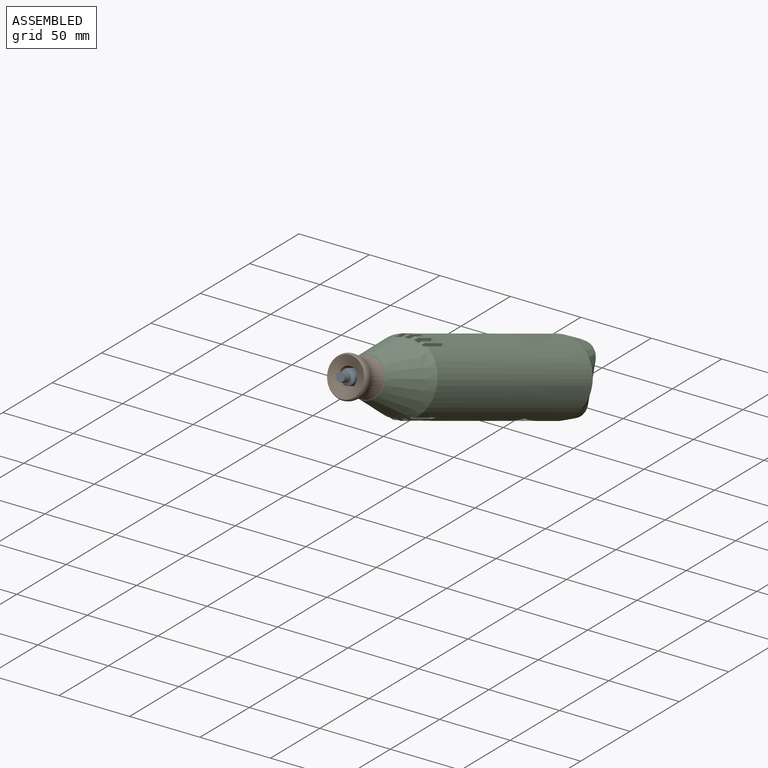
[diagram: assembled view]
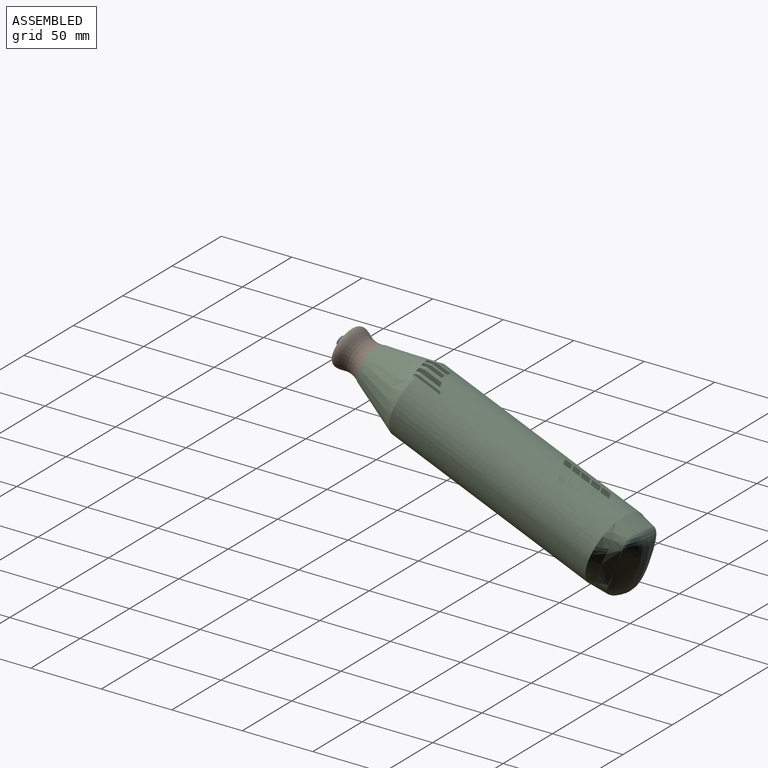
[diagram: assembled view, second angle]
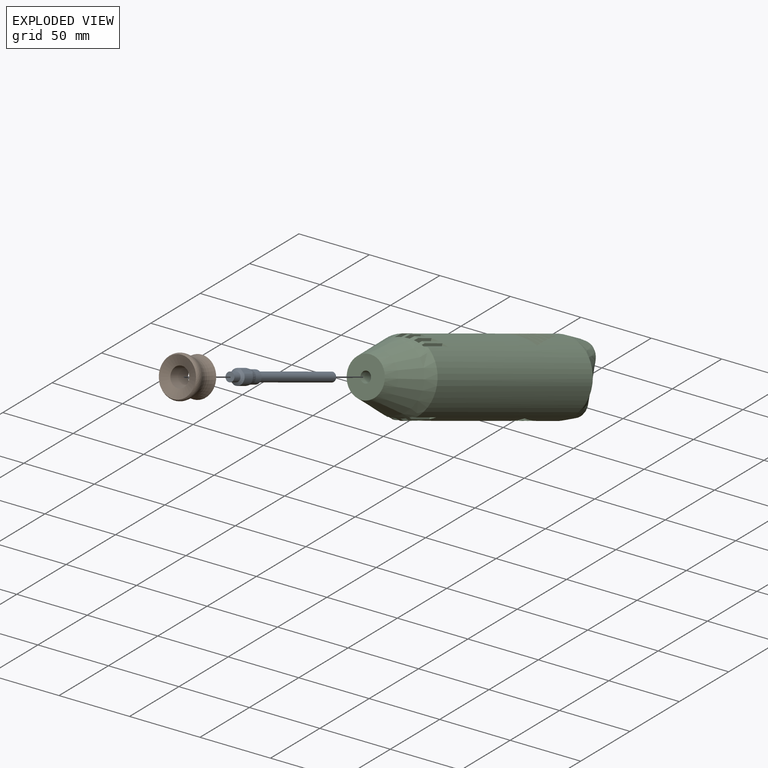
[diagram: exploded view]
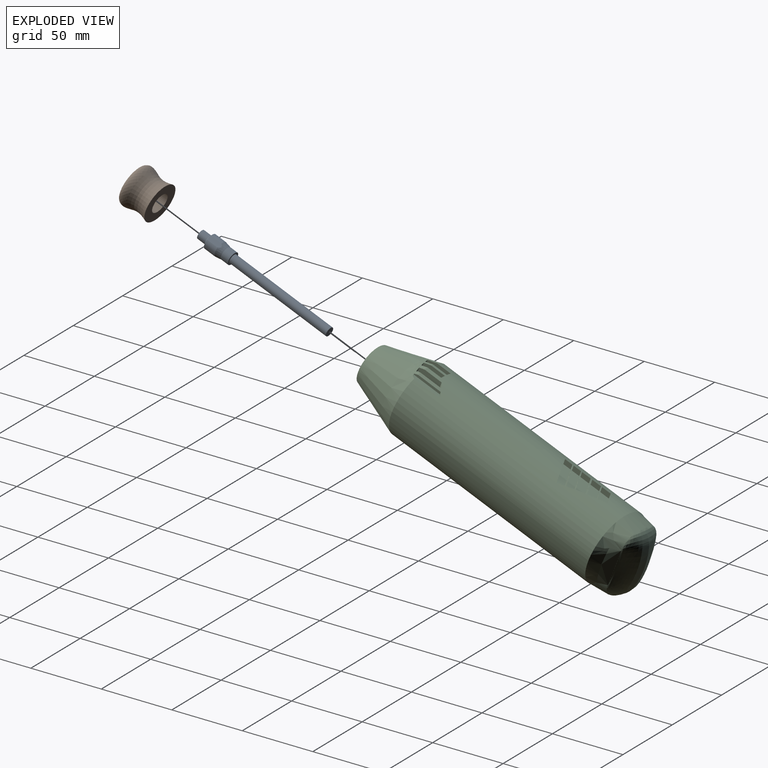
[diagram: exploded view, second angle]
ASSEMBLY  parts=3 mates=4
PART A: 14 faces, bbox 13.5x97.4x40.9 mm
  f0: cone r=0mm half-angle=61deg, axis (0.05,0.94,-0.34), area 61.1mm2, adj f1,f2,f3,f4,f12
  f1: plane 9.6x4.66mm, normal (-0.58,-0.25,-0.78), area 31.9mm2, adj f0,f2,f4,f5
  f2: cylinder r=5.25mm len=10.74mm, axis (-0.05,-0.94,0.34), area 108.1mm2, adj f0,f1,f3,f5
  f3: plane 9.6x4.66mm, normal (0.58,0.25,0.78), area 31.9mm2, adj f0,f2,f4,f5
  f4: cylinder r=5.25mm len=10.74mm, axis (-0.05,-0.94,0.34), area 108.1mm2, adj f0,f1,f3,f5
  f5: cone r=0mm half-angle=10.9deg, axis (-0.05,-0.94,0.34), area 121.9mm2, adj f1,f2,f3,f4,f6
  f6: cylinder r=4.45mm len=10.29mm, axis (-0.05,-0.94,0.34), area 157.8mm2, adj f5,f8
  f7: plane 6.4x6.01mm, normal (0.05,0.94,-0.34), area 0.5mm2, adj f9,f11
  f8: plane 8.88x8.35mm, normal (0.05,0.94,-0.34), area 29.9mm2, adj f6,f9
  f9: cylinder r=3.2mm len=9.91mm, axis (0.05,0.94,-0.34), area 164.8mm2, adj f7,f8
  f10: plane 6.34x5.96mm, normal (0.05,0.94,-0.34), area 31.7mm2, adj f11
  f11: cylinder r=3.17mm len=81.27mm, axis (0.05,0.94,-0.34), area 1682.6mm2, adj f7,f10
  f12: cylinder r=3.17mm len=8.09mm, axis (0.05,0.94,-0.34), area 123.4mm2, adj f0,f13
  f13: plane 6.34x5.96mm, normal (-0.05,-0.94,0.34), area 31.7mm2, adj f12
PART B: 5 faces, bbox 28.5x28.1x32.2 mm
  f0: bspline ~32.13x28.06mm, area 840.7mm2, adj f1,f2,f3
  f1: bspline ~32.14x27.99mm, area 840.7mm2, adj f0,f2,f3
  f2: plane 26.74x25.15mm, normal (0.05,0.94,-0.34), area 419.2mm2, adj f0,f1,f4
  f3: cone r=0mm half-angle=70.3deg, axis (-0.05,-0.94,0.34), area 437mm2, adj f0,f1,f4
  f4: cylinder r=6.72mm len=21.3mm, axis (-0.05,-0.94,0.34), area 749mm2, adj f2,f3
PART C: 130 faces, bbox 63.2x210x106.7 mm
  f0: plane 13.59x8.99mm, normal (-1,0.04,-0.05), area 56.5mm2, adj f1,f2,f3,f4,f124,f125,f126
  f1: plane 18.25x6.7mm, normal (-0.04,0.35,0.94), area 22.1mm2, adj f0,f2,f4,f5
  f2: cylinder r=65.18mm len=14.52mm, axis (0.04,-0.35,-0.94), area 95.7mm2, adj f0,f1,f3,f5
  f3: plane 18.25x6.7mm, normal (0.04,-0.35,-0.94), area 22.1mm2, adj f0,f2,f4,f5
  f4: cylinder r=64.76mm len=14.31mm, axis (0.04,-0.35,-0.94), area 95.7mm2, adj f0,f1,f3,f5
  f5: plane 44.54x26.27mm, normal (-1,0.04,-0.05), area 360.3mm2, adj f1,f2,f3,f4,f6,f10,f11
  f6: bspline ~17.83x8.54mm, area 64.6mm2, adj f5,f10,f11,f22,f27
  f7: plane 13.69x5.06mm, normal (0.05,0.94,-0.34), area 18.6mm2, adj f9,f38
  f8: plane 13.69x5.06mm, normal (-0.05,-0.94,0.34), area 18.6mm2, adj f9,f38
  f9: cylinder r=15.12mm len=16.05mm, axis (0.05,0.94,-0.34), area 104.5mm2, adj f7,f8,f38
  f10: plane 34.54x14.89mm, normal (-0.72,-0.2,-0.67), area 123.9mm2, adj f5,f6,f11,f39
  f11: bspline ~47.3x18.44mm, area 212.8mm2, adj f5,f6,f10,f40,f41
  f12: plane 16.24x5.96mm, normal (0.04,-0.35,-0.94), area 67.3mm2, adj f26,f42,f43,f44
  f13: plane 14.93x5.48mm, normal (0.04,-0.35,-0.94), area 51.3mm2, adj f25,f45,f46,f47
  f14: plane 18.64x6.71mm, normal (0.04,-0.35,-0.94), area 59.6mm2, adj f24,f48,f49,f50
  f15: plane 18.64x6.71mm, normal (-0.04,0.35,0.94), area 59.6mm2, adj f20,f57,f58,f59
  f16: plane 14.93x5.48mm, normal (-0.04,0.35,0.94), area 51.3mm2, adj f19,f60,f61,f62
  f17: plane 16.24x5.96mm, normal (-0.04,0.35,0.94), area 67.3mm2, adj f18,f63,f64,f65
  f18: plane 4.12x2.54mm, normal (-0.17,0.92,-0.35), area 9.4mm2, adj f17,f63,f65,f66
  f19: plane 3.45x2.8mm, normal (-0.17,0.92,-0.35), area 9.8mm2, adj f16,f60,f62,f66
  f20: plane 3.4x2.4mm, normal (-0.17,0.92,-0.35), area 6.9mm2, adj f15,f57,f59,f66
  f21: plane 1.6x0.77mm, normal (-0.17,0.92,-0.35), area 0.6mm2, adj f54,f56,f66
  f22: cylinder r=11.92mm len=7.96mm, axis (-1,0.04,-0.05), area 44.2mm2, adj f6,f27,f39,f70,f117
  f23: plane 1.57x0.73mm, normal (-0.17,0.92,-0.35), area 0.6mm2, adj f51,f53,f68
  f24: plane 3.36x2.31mm, normal (-0.17,0.92,-0.35), area 6.9mm2, adj f14,f48,f50,f68
  f25: plane 3.45x2.79mm, normal (-0.17,0.92,-0.35), area 9.8mm2, adj f13,f45,f47,f68
  f26: plane 4.15x2.64mm, normal (-0.17,0.92,-0.35), area 9.4mm2, adj f12,f42,f44,f68
  f27: cylinder r=11.92mm len=10.75mm, axis (-1,0.04,-0.05), area 43.7mm2, adj f6,f22,f41,f70
  f28: plane 18.82x13.14mm, normal (-0.04,0.35,0.94), area 101.5mm2, adj f72,f73,f74,f75
  f29: plane 20.72x14mm, normal (-0.04,0.35,0.94), area 112.3mm2, adj f76,f77,f78,f79
  f30: plane 14.71x12.12mm, normal (-0.04,0.35,0.94), area 91.1mm2, adj f80,f81,f82,f83
  f31: plane 12.56x11.16mm, normal (-0.04,0.35,0.94), area 76.9mm2, adj f84,f85,f86,f87
  f32: plane 16.96x13.13mm, normal (-0.04,0.35,0.94), area 106mm2, adj f88,f89,f90,f91
  f33: plane 16.96x13.13mm, normal (0.04,-0.35,-0.94), area 106mm2, adj f93,f94,f95,f96
  f34: plane 12.56x11.16mm, normal (0.04,-0.35,-0.94), area 76.9mm2, adj f97,f98,f99,f100
  f35: plane 14.71x12.12mm, normal (0.04,-0.35,-0.94), area 91.1mm2, adj f101,f102,f103,f104
  f36: plane 20.72x14mm, normal (0.04,-0.35,-0.94), area 112.3mm2, adj f105,f106,f107,f108
  f37: plane 18.82x13.14mm, normal (0.04,-0.35,-0.94), area 101.5mm2, adj f109,f110,f111,f112
  f38: plane 20.25x18.57mm, normal (-1,0.04,-0.05), area 152.9mm2, adj f7,f8,f9,f92,f113,f114,f115,f116
  f39: plane 34.57x12.86mm, normal (-0.04,0.35,0.94), area 152mm2, adj f10,f22,f40,f117
  f40: cylinder r=9.53mm len=18.66mm, axis (-1,0.04,-0.05), area 123.9mm2, adj f11,f39,f41,f117
  f41: plane 35.06x13.3mm, normal (0.04,-0.35,-0.94), area 152.3mm2, adj f11,f27,f40,f117
  f42: plane 17.02x9.85mm, normal (1,-0.04,0.05), area 61.6mm2, adj f12,f26,f43,f68,f117
  f43: plane 4.24x4.16mm, normal (-0.05,-0.94,0.34), area 17.2mm2, adj f12,f42,f44,f117
  f44: plane 16.3x9.89mm, normal (-1,0.04,-0.05), area 69mm2, adj f12,f26,f43,f68,f117
  f45: plane 15.92x9.76mm, normal (1,-0.04,0.05), area 68.3mm2, adj f13,f25,f46,f68,f117
  f46: plane 4.46x3.46mm, normal (-0.05,-0.94,0.34), area 14.7mm2, adj f13,f45,f47,f117
  f47: plane 15.19x9.24mm, normal (-1,0.04,-0.05), area 61.7mm2, adj f13,f25,f46,f68,f117
  f48: plane 17.07x9.46mm, normal (1,-0.04,0.05), area 62.2mm2, adj f14,f24,f49,f68,f117
  f49: plane 3.75x3.53mm, normal (0.6,-0.74,0.3), area 13.7mm2, adj f14,f48,f50,f117
  f50: plane 18.63x9.13mm, normal (-1,0.04,-0.05), area 49.1mm2, adj f14,f24,f49,f68,f117
  f51: plane 19.45x8.67mm, normal (1,-0.04,0.05), area 33.9mm2, adj f23,f52,f53,f68,f117
  f52: plane 3.01x2.76mm, normal (0.6,-0.74,0.3), area 3.3mm2, adj f51,f53,f117
  f53: plane 21.32x7.75mm, normal (0.04,-0.35,-0.94), area 59.3mm2, adj f23,f51,f52,f68,f117
  f54: plane 21.32x7.75mm, normal (-0.04,0.35,0.94), area 59.3mm2, adj f21,f55,f56,f66,f117
  f55: plane 3.08x2.32mm, normal (0.6,-0.74,0.3), area 3.3mm2, adj f54,f56,f117
  f56: plane 19.78x7.79mm, normal (1,-0.04,0.05), area 33.9mm2, adj f21,f54,f55,f66,f117
  f57: plane 19x8.13mm, normal (-1,0.04,-0.05), area 49.1mm2, adj f15,f20,f58,f66,f117
  f58: plane 4.29x3.57mm, normal (0.6,-0.74,0.3), area 13.7mm2, adj f15,f57,f59,f117
  f59: plane 17.52x8.27mm, normal (1,-0.04,0.05), area 62.2mm2, adj f15,f20,f58,f66,f117
  f60: plane 15.69x7.88mm, normal (-1,0.04,-0.05), area 61.7mm2, adj f16,f19,f61,f66,f117
  f61: plane 4.3x3.47mm, normal (-0.05,-0.94,0.34), area 14.7mm2, adj f16,f60,f62,f117
  f62: plane 16.51x8.18mm, normal (1,-0.04,0.05), area 68.3mm2, adj f16,f19,f61,f66,f117
  f63: plane 16.93x8.16mm, normal (-1,0.04,-0.05), area 69mm2, adj f17,f18,f64,f66,f117
  f64: plane 4.46x4.14mm, normal (-0.05,-0.94,0.34), area 17.2mm2, adj f17,f63,f65,f117
  f65: plane 17.78x7.79mm, normal (1,-0.04,0.05), area 61.6mm2, adj f17,f18,f64,f66,f117
  f66: cone r=0mm half-angle=18deg, axis (0.05,0.94,-0.34), area 166.5mm2, adj f18,f19,f20,f21,f54,f56,f57,f59
  f67: cylinder r=25.4mm len=5.79mm, axis (-0.05,-0.94,0.34), area 14.8mm2, adj f117,f118
  f68: cone r=0mm half-angle=18deg, axis (0.05,0.94,-0.34), area 166.5mm2, adj f23,f24,f25,f26,f42,f44,f45,f47
  f69: cylinder r=25.4mm len=5.97mm, axis (-0.05,-0.94,0.34), area 14.8mm2, adj f117,f118
  f70: cone r=0mm half-angle=18deg, axis (0.05,0.94,-0.34), area 119mm2, adj f22,f27,f117,f118
  f71: plane 27.28x25.65mm, normal (-0.05,-0.94,0.34), area 540.5mm2, adj f118,f128
  f72: plane 6.68x5.38mm, normal (1,-0.04,0.05), area 20.9mm2, adj f28,f73,f75,f119
  f73: plane 19.18x9.31mm, normal (-0.42,0.85,-0.33), area 81mm2, adj f28,f72,f74,f119
  f74: plane 5.64x3.57mm, normal (-0.97,-0.25,0.05), area 11.6mm2, adj f28,f73,f75,f119
  f75: plane 17.48x8.75mm, normal (0.42,-0.85,0.33), area 77mm2, adj f28,f72,f74,f119
  f76: plane 19.48x9.41mm, normal (0.42,-0.85,0.33), area 81.6mm2, adj f29,f77,f79,f119
  f77: plane 6.68x5.38mm, normal (1,-0.04,0.05), area 20.9mm2, adj f29,f76,f78,f119
  f78: plane 21.23x9.95mm, normal (-0.42,0.85,-0.33), area 83.9mm2, adj f29,f77,f79,f119
  f79: plane 5.35x2.62mm, normal (-0.97,-0.25,0.05), area 6.7mm2, adj f29,f76,f78,f119
  f80: plane 12.99x7.16mm, normal (0.42,-0.85,0.33), area 60.8mm2, adj f30,f81,f83,f119
  f81: plane 7.63x5.73mm, normal (1,-0.04,0.05), area 24.6mm2, adj f30,f80,f82,f119
  f82: plane 14.89x7.85mm, normal (-0.42,0.85,-0.33), area 68.6mm2, adj f30,f81,f83,f119
  f83: plane 6.92x5.38mm, normal (-0.97,-0.25,0.05), area 22.7mm2, adj f30,f80,f82,f119
  f84: plane 10.84x6.33mm, normal (0.42,-0.85,0.33), area 51mm2, adj f31,f85,f87,f119
  f85: plane 7.63x5.73mm, normal (1,-0.04,0.05), area 24.6mm2, adj f31,f84,f86,f119
  f86: plane 12.74x7.07mm, normal (-0.42,0.85,-0.33), area 59.7mm2, adj f31,f85,f87,f119
  f87: plane 7.04x5.88mm, normal (-0.97,-0.25,0.05), area 25.5mm2, adj f31,f84,f86,f119
  f88: plane 7.63x5.73mm, normal (1,-0.04,0.05), area 24.6mm2, adj f32,f89,f91,f119
  f89: plane 17.22x8.66mm, normal (-0.42,0.85,-0.33), area 76.3mm2, adj f32,f88,f90,f119
  f90: plane 6.73x4.66mm, normal (-0.97,-0.25,0.05), area 18.5mm2, adj f32,f89,f91,f119
  f91: plane 15.25x7.98mm, normal (0.42,-0.85,0.33), area 69.9mm2, adj f32,f88,f90,f119
  f92: bspline ~12.86x5.81mm, area 23.7mm2, adj f38,f113,f116,f119
  f93: plane 15.24x8.06mm, normal (0.42,-0.85,0.33), area 69.9mm2, adj f33,f94,f96,f122
  f94: plane 6.49x5.29mm, normal (-0.97,-0.25,0.05), area 18.5mm2, adj f33,f93,f95,f122
  f95: plane 17.19x8.98mm, normal (-0.42,0.85,-0.33), area 76.3mm2, adj f33,f94,f96,f122
  f96: plane 7.63x5.73mm, normal (1,-0.04,0.05), area 24.6mm2, adj f33,f93,f95,f122
  f97: plane 7.63x5.73mm, normal (1,-0.04,0.05), area 24.6mm2, adj f34,f98,f100,f122
  f98: plane 10.87x6.08mm, normal (0.42,-0.85,0.33), area 51mm2, adj f34,f97,f99,f122
  f99: plane 6.93x6.18mm, normal (-0.97,-0.25,0.05), area 25.5mm2, adj f34,f98,f100,f122
  f100: plane 12.76x6.93mm, normal (-0.42,0.85,-0.33), area 59.7mm2, adj f34,f97,f99,f122
  f101: plane 6.75x5.84mm, normal (-0.97,-0.25,0.05), area 22.7mm2, adj f35,f102,f104,f122
  f102: plane 14.89x7.9mm, normal (-0.42,0.85,-0.33), area 68.6mm2, adj f35,f101,f103,f122
  f103: plane 7.63x5.73mm, normal (1,-0.04,0.05), area 24.6mm2, adj f35,f102,f104,f122
  f104: plane 13x7.04mm, normal (0.42,-0.85,0.33), area 60.8mm2, adj f35,f101,f103,f122
  f105: plane 6.68x5.38mm, normal (1,-0.04,0.05), area 20.9mm2, adj f36,f106,f108,f122
  f106: plane 19.41x10.06mm, normal (0.42,-0.85,0.33), area 81.6mm2, adj f36,f105,f107,f122
  f107: plane 5.04x3.45mm, normal (-0.97,-0.25,0.05), area 6.7mm2, adj f36,f106,f108,f122
  f108: plane 21.12x10.91mm, normal (-0.42,0.85,-0.33), area 83.9mm2, adj f36,f105,f107,f122
  f109: plane 19.12x9.92mm, normal (-0.42,0.85,-0.33), area 81mm2, adj f37,f110,f112,f122
  f110: plane 6.68x5.38mm, normal (1,-0.04,0.05), area 20.9mm2, adj f37,f109,f111,f122
  f111: plane 17.44x9.1mm, normal (0.42,-0.85,0.33), area 77mm2, adj f37,f110,f112,f122
  f112: plane 5.38x4.25mm, normal (-0.97,-0.25,0.05), area 11.6mm2, adj f37,f109,f111,f122
  f113: bspline ~23.52x10.99mm, area 75mm2, adj f38,f92,f114,f119,f122
  f114: bspline ~13.47x5.94mm, area 25.7mm2, adj f38,f113,f115,f122
  f115: plane 11.83x9.91mm, normal (-0.89,0.45,0.1), area 44.4mm2, adj f38,f114,f116,f122
  f116: bspline ~14.12x9.82mm, area 54.7mm2, adj f38,f92,f115,f119,f122
  f117: cylinder r=25.4mm len=115.03mm, axis (-0.05,-0.94,0.34), area 9512.4mm2, adj f22,f39,f40,f41,f42,f43,f44,f45
  f118: cone r=0mm half-angle=18deg, axis (0.05,0.94,-0.34), area 4027.3mm2, adj f66,f67,f68,f69,f70,f71,f119,f122
  f119: cylinder r=25.4mm len=155.05mm, axis (-0.05,-0.94,0.34), area 6251.9mm2, adj f72,f73,f74,f75,f76,f77,f78,f79
  f120: bspline ~44.62x32.48mm, area 1782.9mm2, adj f121,f123
  f121: bspline ~44.4x42.58mm, area 1013.7mm2, adj f119,f120,f122,f123
  f122: cylinder r=25.4mm len=155.05mm, axis (-0.05,-0.94,0.34), area 6238.8mm2, adj f93,f94,f95,f96,f97,f98,f99,f100
  f123: bspline ~44.41x41.05mm, area 1013.5mm2, adj f119,f120,f121,f122
  f124: plane 1.52x1.33mm, normal (-0.05,-0.94,0.34), area 2mm2, adj f0,f125,f126,f127
  f125: cylinder r=1.55mm len=3.14mm, axis (-1,0.04,-0.05), area 9.3mm2, adj f0,f124,f126,f127
  f126: plane 1.5x1.35mm, normal (-0.04,0.35,0.94), area 2mm2, adj f0,f124,f125,f127
  f127: plane 3.1x3mm, normal (-1,0.04,-0.05), area 5.7mm2, adj f124,f125,f126
  f128: cylinder r=3.81mm len=26.46mm, axis (-0.05,-0.94,0.34), area 608mm2, adj f71,f129
  f129: plane 7.61x7.15mm, normal (-0.05,-0.94,0.34), area 45.6mm2, adj f128
PLACE A t=(119.02,-0.09,65.66)mm fixed
PLACE B t=(118.05,-16.75,71.78)mm
PLACE C t=(118.05,-16.75,71.78)mm
MATE planar C.f66 <-> B.f2  axis (-0.05,-0.94,0.34) through (63.35,-158.3,50.93)mm
MATE cylindrical B.f3 <-> C.f66  axis (-0.05,-0.94,0.34) through (63.35,-158.3,50.93)mm
MATE cylindrical C.f66 <-> A.f11  axis (-0.05,-0.94,0.34) through (63.35,-158.3,50.93)mm
MATE planar A.f11 <-> C.f66  axis (0.05,0.94,-0.34) through (63.35,-158.3,50.93)mm
